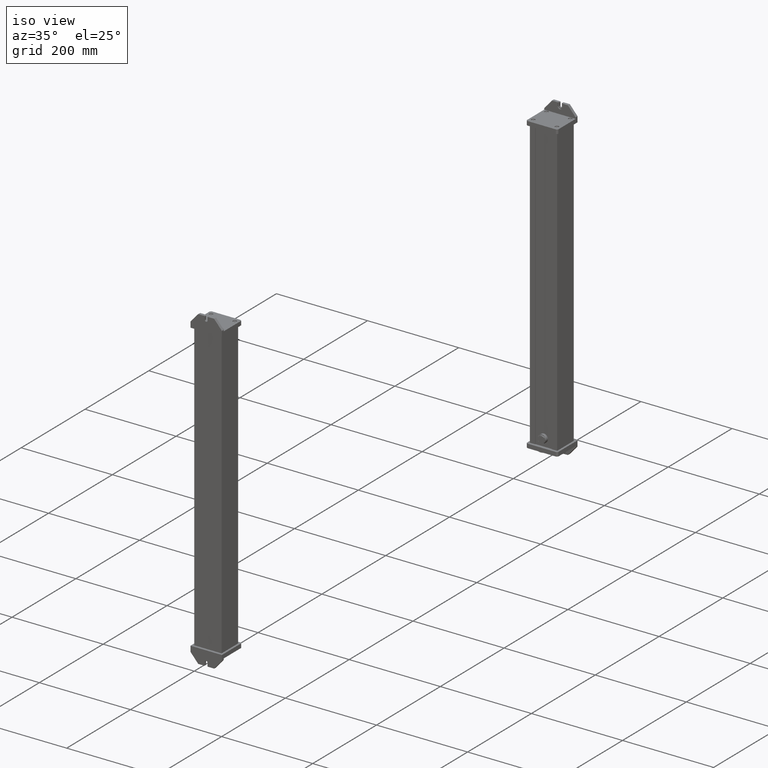
[diagram: clean part render]
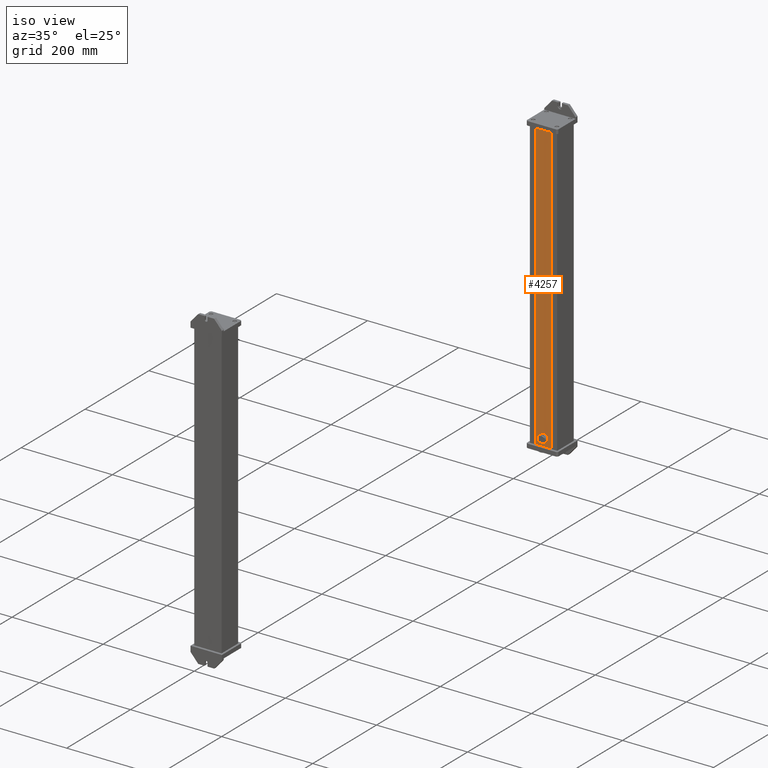
[diagram: same view with one face highlighted and labeled with its STEP entity id]
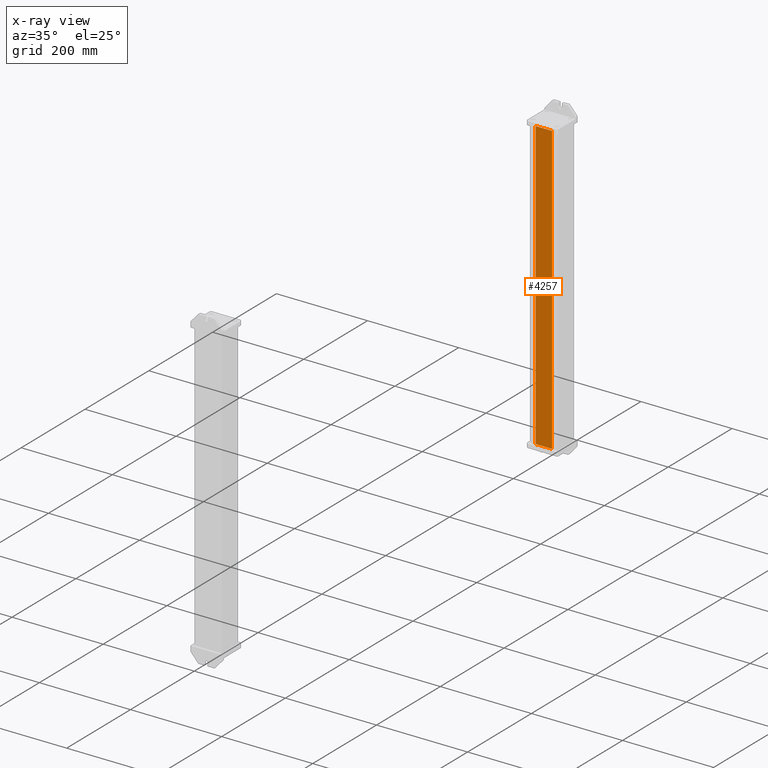
[diagram: x-ray of the same camera — body ghosted, the highlighted face saturated]
A machine part, iso view. The second image highlights one B-rep face of the part: STEP entity #4257.
The next image is the same camera in x-ray: the body ghosted, the highlighted face saturated — about 0% of this face is hidden behind the body in this view.
In plain terms, the highlighted planar face has unit normal (0, -1, 0).
Its self-contained STEP definition (entity closure, byte-faithful):
#4174=CARTESIAN_POINT('Vertex',(12.,51.,0.)) ;
#4177=CARTESIAN_POINT('Line Origine',(30.,51.,0.)) ;
#4181=CARTESIAN_POINT('Vertex',(48.,51.,0.)) ;
#4214=CARTESIAN_POINT('Vertex',(12.,51.,631.)) ;
#4217=CARTESIAN_POINT('Line Origine',(12.,51.,315.5)) ;
#4234=CARTESIAN_POINT('Axis2P3D Location',(48.,51.,0.)) ;
#4239=CARTESIAN_POINT('Line Origine',(48.,51.,315.5)) ;
#4243=CARTESIAN_POINT('Vertex',(48.,51.,631.)) ;
#4246=CARTESIAN_POINT('Line Origine',(30.,51.,631.)) ;
#4178=DIRECTION('Vector Direction',(-1.,0.,0.)) ;
#4218=DIRECTION('Vector Direction',(0.,0.,1.)) ;
#4235=DIRECTION('Axis2P3D Direction',(0.,1.,-0.)) ;
#4236=DIRECTION('Axis2P3D XDirection',(-1.,0.,0.)) ;
#4240=DIRECTION('Vector Direction',(0.,0.,1.)) ;
#4247=DIRECTION('Vector Direction',(-1.,0.,0.)) ;
#4237=AXIS2_PLACEMENT_3D('Plane Axis2P3D',#4234,#4235,#4236) ;
#4252=ORIENTED_EDGE('',*,*,#4245,.F.) ;
#4253=ORIENTED_EDGE('',*,*,#4183,.F.) ;
#4254=ORIENTED_EDGE('',*,*,#4221,.T.) ;
#4255=ORIENTED_EDGE('',*,*,#4250,.F.) ;
#4179=VECTOR('Line Direction',#4178,1.) ;
#4219=VECTOR('Line Direction',#4218,1.) ;
#4241=VECTOR('Line Direction',#4240,1.) ;
#4248=VECTOR('Line Direction',#4247,1.) ;
#4257=ADVANCED_FACE('Body.2',(#4256),#4238,.T.) ;
#4183=EDGE_CURVE('',#4175,#4182,#4180,.F.) ;
#4221=EDGE_CURVE('',#4175,#4215,#4220,.T.) ;
#4245=EDGE_CURVE('',#4182,#4244,#4242,.T.) ;
#4250=EDGE_CURVE('',#4244,#4215,#4249,.T.) ;
#4251=EDGE_LOOP('',(#4252,#4253,#4254,#4255)) ;
#4256=FACE_OUTER_BOUND('',#4251,.T.) ;
#4180=LINE('Line',#4177,#4179) ;
#4220=LINE('Line',#4217,#4219) ;
#4242=LINE('Line',#4239,#4241) ;
#4249=LINE('Line',#4246,#4248) ;
#4238=PLANE('Plane',#4237) ;
#4175=VERTEX_POINT('',#4174) ;
#4182=VERTEX_POINT('',#4181) ;
#4215=VERTEX_POINT('',#4214) ;
#4244=VERTEX_POINT('',#4243) ;